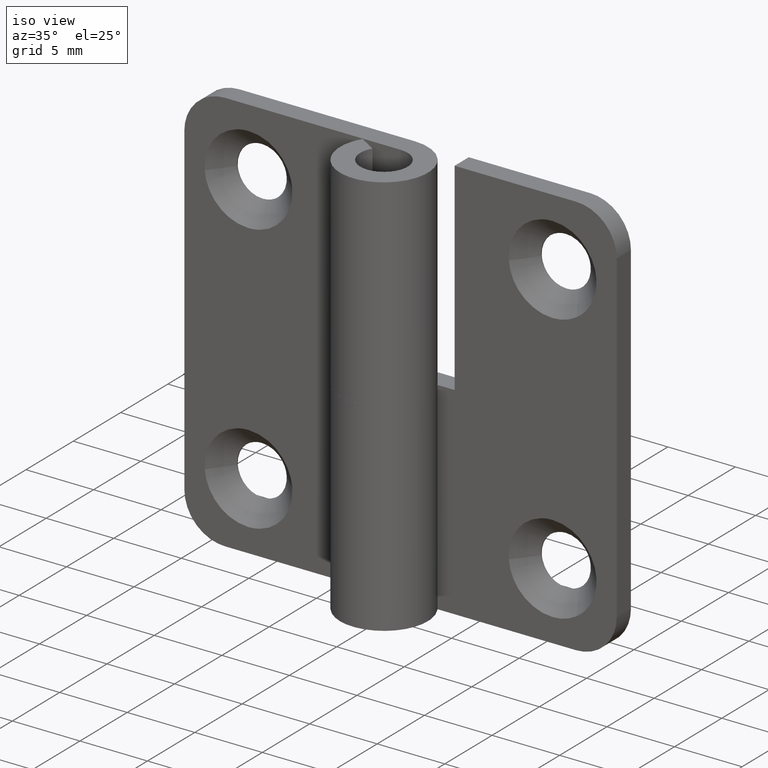
[diagram: clean part render]
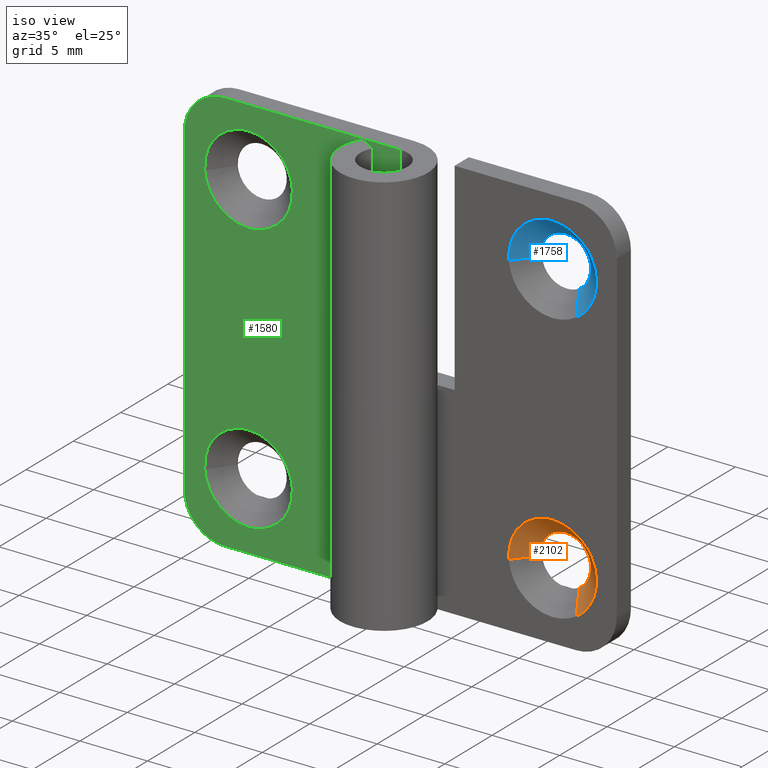
[diagram: same view with three faces highlighted in distinct colors, each labeled with its STEP entity id]
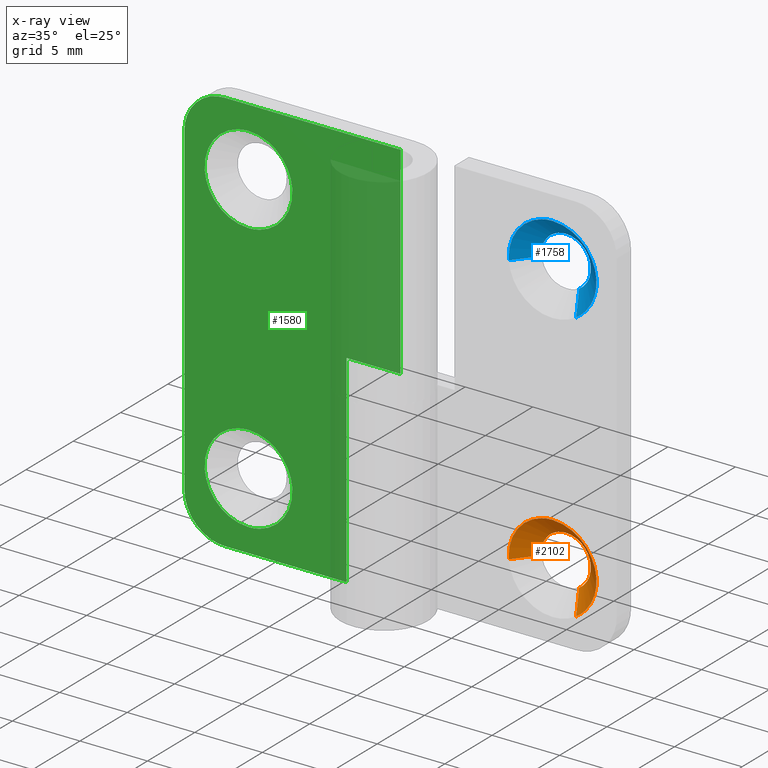
[diagram: x-ray of the same camera — body ghosted, the three highlighted faces saturated]
A machine part, iso view with three faces highlighted in distinct colors.
The next image is the same camera in x-ray (body ghosted, the three faces saturated) — at least one of them is partly hidden behind the body in this view.
Their STEP definitions:

[orange] entity #2102 — the highlighted face is a freeform B-spline surface patch.
#1966=CARTESIAN_POINT('',(12.226199204050261,3.184999914467338,3.469882289452754));
#1967=CARTESIAN_POINT('',(13.144906164681577,3.184999914467338,4.056007786557792));
#1968=CARTESIAN_POINT('',(13.059404986573719,3.184999914467338,5.142403260780329));
#1969=CARTESIAN_POINT('',(12.917001725793392,3.184999914467337,6.951808247354050));
#1970=CARTESIAN_POINT('',(11.107596739219670,3.184999914467338,6.809404986573721));
#1971=CARTESIAN_POINT('',(9.298191752645950,3.184999914467337,6.667001725793393));
#1972=CARTESIAN_POINT('',(9.440595013426279,3.184999914467338,4.857596739219671));
#1973=CARTESIAN_POINT('',(13.017310442706544,1.714125002138317,2.229875831489477));
#1974=CARTESIAN_POINT('',(14.680536963046244,1.714125002138317,3.290997073416813));
#1975=CARTESIAN_POINT('',(14.525745682427720,1.714125002138316,5.257806776330438));
#1976=CARTESIAN_POINT('',(14.267938906097283,1.714125002138317,8.533552458758155));
#1977=CARTESIAN_POINT('',(10.992193223669560,1.714125002138316,8.275745682427717));
#1978=CARTESIAN_POINT('',(7.716447541241846,1.714125002138317,8.017938906097280));
#1979=CARTESIAN_POINT('',(7.974254317572283,1.714125002138316,4.742193223669562));
#1987=(BOUNDED_SURFACE()B_SPLINE_SURFACE(2,1,((#1966,#1973),(#1967,#1974),(#1968,#1975),(#1969,#1976),(#1970,#1977),(#1971,#1978),(#1972,#1979)),.UNSPECIFIED.,.F.,.F.,.U.)B_SPLINE_SURFACE_WITH_KNOTS((3,2,2,3),(2,2),(0.0,3.702066781231150,9.146282635982843,14.590498490734531),(0.0,2.080131249570040),.UNSPECIFIED.)GEOMETRIC_REPRESENTATION_ITEM()RATIONAL_B_SPLINE_SURFACE(((0.872532871172386,0.872532871172386),(0.800832611206852,0.800832611206852),(1.0,1.0),(0.707106781186548,0.707106781186548),(1.0,1.0),(0.707106781186548,0.707106781186548),(1.0,1.0)))REPRESENTATION_ITEM('')SURFACE());
#1988=CARTESIAN_POINT('',(13.087067641521941,3.149999916553500,5.218363336286531));
#1989=VERTEX_POINT('',#1988);
#1990=CARTESIAN_POINT('',(12.245023980748909,3.149999916550422,3.440375889529511));
#1991=VERTEX_POINT('',#1990);
#1992=CARTESIAN_POINT('',(13.087067641521941,3.149999916553500,5.218363336286531));
#1993=CARTESIAN_POINT('',(13.100000023841863,3.149999916553500,5.109564622829602));
#1994=CARTESIAN_POINT('',(13.100000023841860,3.149999916553500,5.0));
#1995=CARTESIAN_POINT('',(13.100000023841854,3.149999916553499,3.985841723377516));
#1996=CARTESIAN_POINT('',(12.245023980748913,3.149999916550421,3.440375889529511));
#2004=(BOUNDED_CURVE()B_SPLINE_CURVE(2,(#1992,#1993,#1994,#1995,#1996),.UNSPECIFIED.,.F.,.U.)B_SPLINE_CURVE_WITH_KNOTS((3,2,3),(0.229562473504437,0.250000000000000,0.407950112618090),.UNSPECIFIED.)CURVE()GEOMETRIC_REPRESENTATION_ITEM()RATIONAL_B_SPLINE_CURVE((0.956026754165919,0.976055948320517,1.0,0.814949932413361,0.863729296949081))REPRESENTATION_ITEM(''));
#2005=EDGE_CURVE('',#1989,#1991,#2004,.T.);
#2006=ORIENTED_EDGE('',*,*,#2005,.T.);
#2007=CARTESIAN_POINT('',(12.998015046664330,1.749999999998616,2.260119891452559));
#2008=VERTEX_POINT('',#2007);
#2009=CARTESIAN_POINT('',(12.245023980748909,3.149999916550422,3.440375889529511));
#2010=CARTESIAN_POINT('',(12.998015046664330,1.749999999998616,2.260119891452559));
#2011=QUASI_UNIFORM_CURVE('',1,(#2009,#2010),.UNSPECIFIED.,.F.,.U.);
#2012=EDGE_CURVE('',#1991,#2008,#2011,.T.);
#2013=ORIENTED_EDGE('',*,*,#2012,.T.);
#2014=CARTESIAN_POINT('',(11.250000000000000,1.750000000000000,8.249999940395357));
#2015=VERTEX_POINT('',#2014);
#2016=CARTESIAN_POINT('',(11.250000000000000,1.750000000000000,8.249999940395357));
#2017=CARTESIAN_POINT('',(14.499999940395357,1.750000000000000,8.249999940395355));
#2018=CARTESIAN_POINT('',(14.499999940395361,1.750000000000000,5.0));
#2019=CARTESIAN_POINT('',(14.499999940395357,1.750000000000000,3.218370650660745));
#2020=CARTESIAN_POINT('',(12.998015046664332,1.749999999998616,2.260119891452559));
#2028=(BOUNDED_CURVE()B_SPLINE_CURVE(2,(#2016,#2017,#2018,#2019,#2020),.UNSPECIFIED.,.F.,.U.)B_SPLINE_CURVE_WITH_KNOTS((3,2,3),(0.0,0.250000000000000,0.407950112625137),.UNSPECIFIED.)CURVE()GEOMETRIC_REPRESENTATION_ITEM()RATIONAL_B_SPLINE_CURVE((1.0,0.707106781186547,1.0,0.814949932405105,0.863729296953433))REPRESENTATION_ITEM(''));
#2029=EDGE_CURVE('',#2015,#2008,#2028,.T.);
#2030=ORIENTED_EDGE('',*,*,#2029,.F.);
#2031=CARTESIAN_POINT('',(8.010018724783620,1.749999999988451,4.745007943472487));
#2032=VERTEX_POINT('',#2031);
#2033=CARTESIAN_POINT('',(8.010018724783620,1.749999999988451,4.745007943472487));
#2034=CARTESIAN_POINT('',(8.000000059604647,1.750000000000000,4.872307154478904));
#2035=CARTESIAN_POINT('',(8.000000059604645,1.750000000000000,5.0));
#2036=CARTESIAN_POINT('',(8.000000059604645,1.750000000000000,8.249999940395355));
#2037=CARTESIAN_POINT('',(11.250000000000000,1.750000000000000,8.249999940395357));
#2045=(BOUNDED_CURVE()B_SPLINE_CURVE(2,(#2033,#2034,#2035,#2036,#2037),.UNSPECIFIED.,.F.,.U.)B_SPLINE_CURVE_WITH_KNOTS((3,2,3),(0.736331300623493,0.750000000000000,1.0),.UNSPECIFIED.)CURVE()GEOMETRIC_REPRESENTATION_ITEM()RATIONAL_B_SPLINE_CURVE((0.969723356152462,0.983986122570486,1.0,0.707106781186547,1.0))REPRESENTATION_ITEM(''));
#2046=EDGE_CURVE('',#2032,#2015,#2045,.T.);
#2047=ORIENTED_EDGE('',*,*,#2046,.F.);
#2048=CARTESIAN_POINT('',(9.405702908823280,3.149999916548235,4.854850670992100));
#2049=VERTEX_POINT('',#2048);
#2050=CARTESIAN_POINT('',(9.405702908823280,3.149999916548235,4.854850670992100));
#2051=CARTESIAN_POINT('',(8.010018724783620,1.749999999988451,4.745007943472487));
#2052=QUASI_UNIFORM_CURVE('',1,(#2050,#2051),.UNSPECIFIED.,.F.,.U.);
#2053=EDGE_CURVE('',#2049,#2032,#2052,.T.);
#2054=ORIENTED_EDGE('',*,*,#2053,.F.);
#2055=CARTESIAN_POINT('',(9.403450605072022,3.149999916553500,4.887060200760407));
#2056=VERTEX_POINT('',#2055);
#2057=CARTESIAN_POINT('',(9.405702908823280,3.149999916548235,4.854850670992101));
#2058=CARTESIAN_POINT('',(9.404436209824677,3.149999916553500,4.870945607865558));
#2059=CARTESIAN_POINT('',(9.403450605072022,3.149999916553500,4.887060200760407));
#2067=(BOUNDED_CURVE()B_SPLINE_CURVE(2,(#2057,#2058,#2059),.UNSPECIFIED.,.F.,.U.)B_SPLINE_CURVE_WITH_KNOTS((3,3),(0.736331300625264,0.739332962240384),.UNSPECIFIED.)CURVE()GEOMETRIC_REPRESENTATION_ITEM()RATIONAL_B_SPLINE_CURVE((0.969723356156156,0.972855475555657,0.976072041669807))REPRESENTATION_ITEM(''));
#2068=EDGE_CURVE('',#2049,#2056,#2067,.T.);
#2069=ORIENTED_EDGE('',*,*,#2068,.T.);
#2070=CARTESIAN_POINT('',(11.250000000000000,3.149999916553500,6.850000023841860));
#2071=VERTEX_POINT('',#2070);
#2072=CARTESIAN_POINT('',(9.403450605072022,3.149999916553500,4.887060200760407));
#2073=CARTESIAN_POINT('',(9.399999976158140,3.149999916553501,4.943477387160677));
#2074=CARTESIAN_POINT('',(9.399999976158140,3.149999916553500,5.0));
#2075=CARTESIAN_POINT('',(9.399999976158140,3.149999916553500,6.850000023841860));
#2076=CARTESIAN_POINT('',(11.250000000000000,3.149999916553500,6.850000023841860));
#2084=(BOUNDED_CURVE()B_SPLINE_CURVE(2,(#2072,#2073,#2074,#2075,#2076),.UNSPECIFIED.,.F.,.U.)B_SPLINE_CURVE_WITH_KNOTS((3,2,3),(0.739332962240384,0.750000000000000,1.0),.UNSPECIFIED.)CURVE()GEOMETRIC_REPRESENTATION_ITEM()RATIONAL_B_SPLINE_CURVE((0.976072041669807,0.987502787901526,1.0,0.707106781186548,1.0))REPRESENTATION_ITEM(''));
#2085=EDGE_CURVE('',#2056,#2071,#2084,.T.);
#2086=ORIENTED_EDGE('',*,*,#2085,.T.);
#2087=CARTESIAN_POINT('',(11.250000000000000,3.149999916553500,6.850000023841860));
#2088=CARTESIAN_POINT('',(12.893122894076031,3.149999916553500,6.850000023841860));
#2089=CARTESIAN_POINT('',(13.087067641521939,3.149999916553500,5.218363336286531));
#2097=(BOUNDED_CURVE()B_SPLINE_CURVE(2,(#2087,#2088,#2089),.UNSPECIFIED.,.F.,.U.)B_SPLINE_CURVE_WITH_KNOTS((3,3),(0.0,0.229562473504437),.UNSPECIFIED.)CURVE()GEOMETRIC_REPRESENTATION_ITEM()RATIONAL_B_SPLINE_CURVE((1.0,0.731050832866030,0.956026754165919))REPRESENTATION_ITEM(''));
#2098=EDGE_CURVE('',#2071,#1989,#2097,.T.);
#2099=ORIENTED_EDGE('',*,*,#2098,.T.);
#2100=EDGE_LOOP('',(#2006,#2013,#2030,#2047,#2054,#2069,#2086,#2099));
#2101=FACE_OUTER_BOUND('',#2100,.T.);
#2102=ADVANCED_FACE('',(#2101),#1987,.F.);

[blue] entity #1758 — the highlighted face is a freeform B-spline surface patch.
#1622=CARTESIAN_POINT('',(12.226199204050261,3.184999914467338,23.469890289452543));
#1623=CARTESIAN_POINT('',(13.144906164681577,3.184999914467338,24.056015786557591));
#1624=CARTESIAN_POINT('',(13.059404986573719,3.184999914467338,25.142411260780129));
#1625=CARTESIAN_POINT('',(12.917001725793392,3.184999914467337,26.951816247353857));
#1626=CARTESIAN_POINT('',(11.107596739219670,3.184999914467338,26.809412986573520));
#1627=CARTESIAN_POINT('',(9.298191752645950,3.184999914467337,26.667009725793189));
#1628=CARTESIAN_POINT('',(9.440595013426279,3.184999914467338,24.857604739219472));
#1629=CARTESIAN_POINT('',(13.017310442706544,1.714125002138317,22.229883831489275));
#1630=CARTESIAN_POINT('',(14.680536963046244,1.714125002138317,23.291005073416606));
#1631=CARTESIAN_POINT('',(14.525745682427720,1.714125002138316,25.257814776330239));
#1632=CARTESIAN_POINT('',(14.267938906097283,1.714125002138317,28.533560458757961));
#1633=CARTESIAN_POINT('',(10.992193223669560,1.714125002138316,28.275753682427521));
#1634=CARTESIAN_POINT('',(7.716447541241846,1.714125002138317,28.017946906097073));
#1635=CARTESIAN_POINT('',(7.974254317572283,1.714125002138316,24.742201223669358));
#1643=(BOUNDED_SURFACE()B_SPLINE_SURFACE(2,1,((#1622,#1629),(#1623,#1630),(#1624,#1631),(#1625,#1632),(#1626,#1633),(#1627,#1634),(#1628,#1635)),.UNSPECIFIED.,.F.,.F.,.U.)B_SPLINE_SURFACE_WITH_KNOTS((3,2,2,3),(2,2),(0.0,3.702066781231153,9.146282635982848,14.590498490734539),(0.0,2.080131249570040),.UNSPECIFIED.)GEOMETRIC_REPRESENTATION_ITEM()RATIONAL_B_SPLINE_SURFACE(((0.872532871172386,0.872532871172386),(0.800832611206852,0.800832611206852),(1.0,1.0),(0.707106781186548,0.707106781186548),(1.0,1.0),(0.707106781186548,0.707106781186548),(1.0,1.0)))REPRESENTATION_ITEM('')SURFACE());
#1644=CARTESIAN_POINT('',(13.087067641521941,3.149999916553500,25.218371336286332));
#1645=VERTEX_POINT('',#1644);
#1646=CARTESIAN_POINT('',(12.245023980748909,3.149999916550422,23.440383889529311));
#1647=VERTEX_POINT('',#1646);
#1648=CARTESIAN_POINT('',(13.087067641521944,3.149999916553500,25.218371336286335));
#1649=CARTESIAN_POINT('',(13.100000023841865,3.149999916553500,25.109572622829404));
#1650=CARTESIAN_POINT('',(13.100000023841860,3.149999916553500,25.000007999999799));
#1651=CARTESIAN_POINT('',(13.100000023841854,3.149999916553500,23.985849723377321));
#1652=CARTESIAN_POINT('',(12.245023980748915,3.149999916550421,23.440383889529308));
#1660=(BOUNDED_CURVE()B_SPLINE_CURVE(2,(#1648,#1649,#1650,#1651,#1652),.UNSPECIFIED.,.F.,.U.)B_SPLINE_CURVE_WITH_KNOTS((3,2,3),(0.229562473504437,0.250000000000000,0.407950112618090),.UNSPECIFIED.)CURVE()GEOMETRIC_REPRESENTATION_ITEM()RATIONAL_B_SPLINE_CURVE((0.956026754165919,0.976055948320517,1.0,0.814949932413361,0.863729296949080))REPRESENTATION_ITEM(''));
#1661=EDGE_CURVE('',#1645,#1647,#1660,.T.);
#1662=ORIENTED_EDGE('',*,*,#1661,.T.);
#1663=CARTESIAN_POINT('',(12.998015046664330,1.749999999998617,22.260127891452360));
#1664=VERTEX_POINT('',#1663);
#1665=CARTESIAN_POINT('',(12.245023980748909,3.149999916550422,23.440383889529311));
#1666=CARTESIAN_POINT('',(12.998015046664330,1.749999999998617,22.260127891452360));
#1667=QUASI_UNIFORM_CURVE('',1,(#1665,#1666),.UNSPECIFIED.,.F.,.U.);
#1668=EDGE_CURVE('',#1647,#1664,#1667,.T.);
#1669=ORIENTED_EDGE('',*,*,#1668,.T.);
#1670=CARTESIAN_POINT('',(11.250000000000000,1.750000000000000,28.250007940395150));
#1671=VERTEX_POINT('',#1670);
#1672=CARTESIAN_POINT('',(11.250000000000000,1.750000000000000,28.250007940395150));
#1673=CARTESIAN_POINT('',(14.499999940395357,1.750000000000000,28.250007940395164));
#1674=CARTESIAN_POINT('',(14.499999940395361,1.750000000000000,25.000007999999799));
#1675=CARTESIAN_POINT('',(14.499999940395361,1.750000000000000,23.218378650660540));
#1676=CARTESIAN_POINT('',(12.998015046664330,1.749999999998617,22.260127891452360));
#1684=(BOUNDED_CURVE()B_SPLINE_CURVE(2,(#1672,#1673,#1674,#1675,#1676),.UNSPECIFIED.,.F.,.U.)B_SPLINE_CURVE_WITH_KNOTS((3,2,3),(0.0,0.250000000000000,0.407950112625137),.UNSPECIFIED.)CURVE()GEOMETRIC_REPRESENTATION_ITEM()RATIONAL_B_SPLINE_CURVE((1.0,0.707106781186547,1.0,0.814949932405105,0.863729296953433))REPRESENTATION_ITEM(''));
#1685=EDGE_CURVE('',#1671,#1664,#1684,.T.);
#1686=ORIENTED_EDGE('',*,*,#1685,.F.);
#1687=CARTESIAN_POINT('',(8.010018724783620,1.749999999988451,24.745015943472289));
#1688=VERTEX_POINT('',#1687);
#1689=CARTESIAN_POINT('',(8.010018724783620,1.749999999988452,24.745015943472286));
#1690=CARTESIAN_POINT('',(8.000000059604647,1.750000000000000,24.872315154478702));
#1691=CARTESIAN_POINT('',(8.000000059604645,1.750000000000000,25.000007999999799));
#1692=CARTESIAN_POINT('',(8.000000059604645,1.750000000000000,28.250007940395164));
#1693=CARTESIAN_POINT('',(11.250000000000000,1.750000000000000,28.250007940395150));
#1701=(BOUNDED_CURVE()B_SPLINE_CURVE(2,(#1689,#1690,#1691,#1692,#1693),.UNSPECIFIED.,.F.,.U.)B_SPLINE_CURVE_WITH_KNOTS((3,2,3),(0.736331300623493,0.750000000000000,1.0),.UNSPECIFIED.)CURVE()GEOMETRIC_REPRESENTATION_ITEM()RATIONAL_B_SPLINE_CURVE((0.969723356152462,0.983986122570486,1.0,0.707106781186547,1.0))REPRESENTATION_ITEM(''));
#1702=EDGE_CURVE('',#1688,#1671,#1701,.T.);
#1703=ORIENTED_EDGE('',*,*,#1702,.F.);
#1704=CARTESIAN_POINT('',(9.405702908823280,3.149999916548236,24.854858670991899));
#1705=VERTEX_POINT('',#1704);
#1706=CARTESIAN_POINT('',(9.405702908823280,3.149999916548236,24.854858670991899));
#1707=CARTESIAN_POINT('',(8.010018724783620,1.749999999988451,24.745015943472289));
#1708=QUASI_UNIFORM_CURVE('',1,(#1706,#1707),.UNSPECIFIED.,.F.,.U.);
#1709=EDGE_CURVE('',#1705,#1688,#1708,.T.);
#1710=ORIENTED_EDGE('',*,*,#1709,.F.);
#1711=CARTESIAN_POINT('',(9.403450605072022,3.149999916553500,24.887068200760201));
#1712=VERTEX_POINT('',#1711);
#1713=CARTESIAN_POINT('',(9.405702908823280,3.149999916548236,24.854858670991892));
#1714=CARTESIAN_POINT('',(9.404436209824675,3.149999916553500,24.870953607865349));
#1715=CARTESIAN_POINT('',(9.403450605072022,3.149999916553500,24.887068200760201));
#1723=(BOUNDED_CURVE()B_SPLINE_CURVE(2,(#1713,#1714,#1715),.UNSPECIFIED.,.F.,.U.)B_SPLINE_CURVE_WITH_KNOTS((3,3),(0.736331300625263,0.739332962240384),.UNSPECIFIED.)CURVE()GEOMETRIC_REPRESENTATION_ITEM()RATIONAL_B_SPLINE_CURVE((0.969723356156155,0.972855475555656,0.976072041669805))REPRESENTATION_ITEM(''));
#1724=EDGE_CURVE('',#1705,#1712,#1723,.T.);
#1725=ORIENTED_EDGE('',*,*,#1724,.T.);
#1726=CARTESIAN_POINT('',(11.250000000000000,3.149999916553500,26.850008023841660));
#1727=VERTEX_POINT('',#1726);
#1728=CARTESIAN_POINT('',(9.403450605072022,3.149999916553500,24.887068200760208));
#1729=CARTESIAN_POINT('',(9.399999976158140,3.149999916553500,24.943485387160479));
#1730=CARTESIAN_POINT('',(9.399999976158140,3.149999916553500,25.000007999999799));
#1731=CARTESIAN_POINT('',(9.399999976158140,3.149999916553500,26.850008023841657));
#1732=CARTESIAN_POINT('',(11.250000000000000,3.149999916553500,26.850008023841660));
#1740=(BOUNDED_CURVE()B_SPLINE_CURVE(2,(#1728,#1729,#1730,#1731,#1732),.UNSPECIFIED.,.F.,.U.)B_SPLINE_CURVE_WITH_KNOTS((3,2,3),(0.739332962240385,0.750000000000000,1.0),.UNSPECIFIED.)CURVE()GEOMETRIC_REPRESENTATION_ITEM()RATIONAL_B_SPLINE_CURVE((0.976072041669808,0.987502787901526,1.0,0.707106781186548,1.0))REPRESENTATION_ITEM(''));
#1741=EDGE_CURVE('',#1712,#1727,#1740,.T.);
#1742=ORIENTED_EDGE('',*,*,#1741,.T.);
#1743=CARTESIAN_POINT('',(11.250000000000000,3.149999916553500,26.850008023841660));
#1744=CARTESIAN_POINT('',(12.893122894076031,3.149999916553500,26.850008023841660));
#1745=CARTESIAN_POINT('',(13.087067641521941,3.149999916553500,25.218371336286328));
#1753=(BOUNDED_CURVE()B_SPLINE_CURVE(2,(#1743,#1744,#1745),.UNSPECIFIED.,.F.,.U.)B_SPLINE_CURVE_WITH_KNOTS((3,3),(0.0,0.229562473504437),.UNSPECIFIED.)CURVE()GEOMETRIC_REPRESENTATION_ITEM()RATIONAL_B_SPLINE_CURVE((1.0,0.731050832866030,0.956026754165919))REPRESENTATION_ITEM(''));
#1754=EDGE_CURVE('',#1727,#1645,#1753,.T.);
#1755=ORIENTED_EDGE('',*,*,#1754,.T.);
#1756=EDGE_LOOP('',(#1662,#1669,#1686,#1703,#1710,#1725,#1742,#1755));
#1757=FACE_OUTER_BOUND('',#1756,.T.);
#1758=ADVANCED_FACE('',(#1757),#1643,.F.);

[green] entity #1580 — the highlighted face is a freeform B-spline surface patch.
#661=CARTESIAN_POINT('',(-8.010018665362717,1.749999999988450,25.255000061203841));
#662=VERTEX_POINT('',#661);
#668=CARTESIAN_POINT('',(-11.250000000000000,1.750000000000000,28.250007999999799));
#669=VERTEX_POINT('',#668);
#670=CARTESIAN_POINT('',(-11.250000000000000,1.750000000000000,28.250007999999799));
#671=CARTESIAN_POINT('',(-8.245730902273859,1.750000000000000,28.250007999999802));
#672=CARTESIAN_POINT('',(-8.010018665362717,1.749999999988450,25.255000061203837));
#680=(BOUNDED_CURVE()B_SPLINE_CURVE(2,(#670,#671,#672),.UNSPECIFIED.,.F.,.U.)B_SPLINE_CURVE_WITH_KNOTS((3,3),(0.0,0.236331300623493),.UNSPECIFIED.)CURVE()GEOMETRIC_REPRESENTATION_ITEM()RATIONAL_B_SPLINE_CURVE((1.0,0.723120658616062,0.969723356152462))REPRESENTATION_ITEM(''));
#681=EDGE_CURVE('',#669,#662,#680,.T.);
#683=CARTESIAN_POINT('',(-14.489981334637280,1.749999999988450,24.745015938795749));
#684=VERTEX_POINT('',#683);
#685=CARTESIAN_POINT('',(-14.489981334637278,1.749999999988450,24.745015938795749));
#686=CARTESIAN_POINT('',(-14.499999999999998,1.750000000000000,24.872315152136824));
#687=CARTESIAN_POINT('',(-14.500000000000000,1.750000000000000,25.000007999999799));
#688=CARTESIAN_POINT('',(-14.500000000000004,1.750000000000000,28.250007999999792));
#689=CARTESIAN_POINT('',(-11.250000000000000,1.750000000000000,28.250007999999799));
#697=(BOUNDED_CURVE()B_SPLINE_CURVE(2,(#685,#686,#687,#688,#689),.UNSPECIFIED.,.F.,.U.)B_SPLINE_CURVE_WITH_KNOTS((3,2,3),(0.736331300623493,0.750000000000000,1.0),.UNSPECIFIED.)CURVE()GEOMETRIC_REPRESENTATION_ITEM()RATIONAL_B_SPLINE_CURVE((0.969723356152461,0.983986122570486,1.0,0.707106781186547,1.0))REPRESENTATION_ITEM(''));
#698=EDGE_CURVE('',#684,#669,#697,.T.);
#735=CARTESIAN_POINT('',(-11.250000000000000,1.750000000000000,21.750007999999799));
#736=VERTEX_POINT('',#735);
#737=CARTESIAN_POINT('',(-11.250000000000000,1.750000000000000,21.750007999999799));
#738=CARTESIAN_POINT('',(-14.254269097726150,1.750000000000000,21.750007999999795));
#739=CARTESIAN_POINT('',(-14.489981334637289,1.749999999988450,24.745015938795753));
#747=(BOUNDED_CURVE()B_SPLINE_CURVE(2,(#737,#738,#739),.UNSPECIFIED.,.F.,.U.)B_SPLINE_CURVE_WITH_KNOTS((3,3),(0.500000000000000,0.736331300623494),.UNSPECIFIED.)CURVE()GEOMETRIC_REPRESENTATION_ITEM()RATIONAL_B_SPLINE_CURVE((1.0,0.723120658616061,0.969723356152463))REPRESENTATION_ITEM(''));
#748=EDGE_CURVE('',#736,#684,#747,.T.);
#750=CARTESIAN_POINT('',(-8.010018665362717,1.749999999988450,25.255000061203841));
#751=CARTESIAN_POINT('',(-8.0,1.750000000000000,25.127700847862769));
#752=CARTESIAN_POINT('',(-8.0,1.750000000000000,25.000007999999799));
#753=CARTESIAN_POINT('',(-8.0,1.750000000000000,21.750007999999792));
#754=CARTESIAN_POINT('',(-11.250000000000000,1.750000000000000,21.750007999999799));
#762=(BOUNDED_CURVE()B_SPLINE_CURVE(2,(#750,#751,#752,#753,#754),.UNSPECIFIED.,.F.,.U.)B_SPLINE_CURVE_WITH_KNOTS((3,2,3),(0.236331300623493,0.250000000000000,0.500000000000000),.UNSPECIFIED.)CURVE()GEOMETRIC_REPRESENTATION_ITEM()RATIONAL_B_SPLINE_CURVE((0.969723356152462,0.983986122570486,1.0,0.707106781186547,1.0))REPRESENTATION_ITEM(''));
#763=EDGE_CURVE('',#662,#736,#762,.T.);
#993=CARTESIAN_POINT('',(-8.010018665362717,1.749999999988450,5.254992061204042));
#994=VERTEX_POINT('',#993);
#1000=CARTESIAN_POINT('',(-11.250000000000000,1.750000000000000,8.250000000000000));
#1001=VERTEX_POINT('',#1000);
#1002=CARTESIAN_POINT('',(-11.250000000000000,1.750000000000000,8.250000000000000));
#1003=CARTESIAN_POINT('',(-8.245730902273859,1.750000000000000,8.249999999999998));
#1004=CARTESIAN_POINT('',(-8.010018665362717,1.749999999988450,5.254992061204042));
#1012=(BOUNDED_CURVE()B_SPLINE_CURVE(2,(#1002,#1003,#1004),.UNSPECIFIED.,.F.,.U.)B_SPLINE_CURVE_WITH_KNOTS((3,3),(0.0,0.236331300623493),.UNSPECIFIED.)CURVE()GEOMETRIC_REPRESENTATION_ITEM()RATIONAL_B_SPLINE_CURVE((1.0,0.723120658616062,0.969723356152462))REPRESENTATION_ITEM(''));
#1013=EDGE_CURVE('',#1001,#994,#1012,.T.);
#1015=CARTESIAN_POINT('',(-14.489981334637280,1.749999999988450,4.745007938795959));
#1016=VERTEX_POINT('',#1015);
#1017=CARTESIAN_POINT('',(-14.489981334637278,1.749999999988450,4.745007938795959));
#1018=CARTESIAN_POINT('',(-14.500000000000005,1.750000000000001,4.872307152137029));
#1019=CARTESIAN_POINT('',(-14.500000000000000,1.750000000000000,5.0));
#1020=CARTESIAN_POINT('',(-14.500000000000004,1.750000000000000,8.250000000000000));
#1021=CARTESIAN_POINT('',(-11.250000000000000,1.750000000000000,8.250000000000000));
#1029=(BOUNDED_CURVE()B_SPLINE_CURVE(2,(#1017,#1018,#1019,#1020,#1021),.UNSPECIFIED.,.F.,.U.)B_SPLINE_CURVE_WITH_KNOTS((3,2,3),(0.736331300623493,0.750000000000000,1.0),.UNSPECIFIED.)CURVE()GEOMETRIC_REPRESENTATION_ITEM()RATIONAL_B_SPLINE_CURVE((0.969723356152462,0.983986122570486,1.0,0.707106781186547,1.0))REPRESENTATION_ITEM(''));
#1030=EDGE_CURVE('',#1016,#1001,#1029,.T.);
#1067=CARTESIAN_POINT('',(-11.250000000000000,1.750000000000000,1.750000000000000));
#1068=VERTEX_POINT('',#1067);
#1069=CARTESIAN_POINT('',(-11.250000000000000,1.750000000000000,1.750000000000000));
#1070=CARTESIAN_POINT('',(-14.254269097726150,1.750000000000000,1.750000000000000));
#1071=CARTESIAN_POINT('',(-14.489981334637289,1.749999999988451,4.745007938795959));
#1079=(BOUNDED_CURVE()B_SPLINE_CURVE(2,(#1069,#1070,#1071),.UNSPECIFIED.,.F.,.U.)B_SPLINE_CURVE_WITH_KNOTS((3,3),(0.500000000000000,0.736331300623494),.UNSPECIFIED.)CURVE()GEOMETRIC_REPRESENTATION_ITEM()RATIONAL_B_SPLINE_CURVE((1.0,0.723120658616061,0.969723356152463))REPRESENTATION_ITEM(''));
#1080=EDGE_CURVE('',#1068,#1016,#1079,.T.);
#1082=CARTESIAN_POINT('',(-8.010018665362717,1.749999999988450,5.254992061204042));
#1083=CARTESIAN_POINT('',(-8.0,1.750000000000001,5.127692847862971));
#1084=CARTESIAN_POINT('',(-8.0,1.750000000000000,5.0));
#1085=CARTESIAN_POINT('',(-8.0,1.750000000000000,1.750000000000000));
#1086=CARTESIAN_POINT('',(-11.250000000000000,1.750000000000000,1.750000000000000));
#1094=(BOUNDED_CURVE()B_SPLINE_CURVE(2,(#1082,#1083,#1084,#1085,#1086),.UNSPECIFIED.,.F.,.U.)B_SPLINE_CURVE_WITH_KNOTS((3,2,3),(0.236331300623493,0.250000000000000,0.500000000000000),.UNSPECIFIED.)CURVE()GEOMETRIC_REPRESENTATION_ITEM()RATIONAL_B_SPLINE_CURVE((0.969723356152462,0.983986122570486,1.0,0.707106781186547,1.0))REPRESENTATION_ITEM(''));
#1095=EDGE_CURVE('',#994,#1068,#1094,.T.);
#1108=CARTESIAN_POINT('',(-4.0,1.750000000000030,0.0));
#1109=VERTEX_POINT('',#1108);
#1122=CARTESIAN_POINT('',(-4.0,1.750000000000030,15.0));
#1123=VERTEX_POINT('',#1122);
#1129=CARTESIAN_POINT('',(-4.0,1.750000000000030,0.0));
#1130=CARTESIAN_POINT('',(-4.0,1.750000000000030,15.0));
#1131=QUASI_UNIFORM_CURVE('',1,(#1129,#1130),.UNSPECIFIED.,.F.,.U.);
#1132=EDGE_CURVE('',#1109,#1123,#1131,.T.);
#1178=CARTESIAN_POINT('',(-3.214592E-016,1.750000000000000,15.0));
#1179=VERTEX_POINT('',#1178);
#1199=CARTESIAN_POINT('',(-4.0,1.750000000000030,15.0));
#1200=CARTESIAN_POINT('',(-3.214592E-016,1.750000000000000,15.0));
#1201=QUASI_UNIFORM_CURVE('',1,(#1199,#1200),.UNSPECIFIED.,.F.,.U.);
#1202=EDGE_CURVE('',#1123,#1179,#1201,.T.);
#1221=CARTESIAN_POINT('',(-13.0,1.750000000000000,30.000008000000001));
#1222=VERTEX_POINT('',#1221);
#1223=CARTESIAN_POINT('',(-16.0,1.750000000000030,27.000008000000001));
#1224=VERTEX_POINT('',#1223);
#1225=CARTESIAN_POINT('',(-13.0,1.750000000000030,30.000008000000001));
#1226=CARTESIAN_POINT('',(-15.999999999999998,1.750000000000031,30.000008000000005));
#1227=CARTESIAN_POINT('',(-16.0,1.750000000000030,27.000008000000001));
#1235=(BOUNDED_CURVE()B_SPLINE_CURVE(2,(#1225,#1226,#1227),.UNSPECIFIED.,.F.,.U.)CURVE()GEOMETRIC_REPRESENTATION_ITEM()QUASI_UNIFORM_CURVE()RATIONAL_B_SPLINE_CURVE((1.0,0.707106781186548,1.0))REPRESENTATION_ITEM(''));
#1236=EDGE_CURVE('',#1222,#1224,#1235,.T.);
#1282=CARTESIAN_POINT('',(-16.0,1.750000000000030,3.0));
#1283=VERTEX_POINT('',#1282);
#1284=CARTESIAN_POINT('',(-13.0,1.750000000000030,0.0));
#1285=VERTEX_POINT('',#1284);
#1286=CARTESIAN_POINT('',(-16.0,1.750000000000030,3.0));
#1287=CARTESIAN_POINT('',(-15.999999999999998,1.750000000000031,0.0));
#1288=CARTESIAN_POINT('',(-13.0,1.750000000000030,0.0));
#1296=(BOUNDED_CURVE()B_SPLINE_CURVE(2,(#1286,#1287,#1288),.UNSPECIFIED.,.F.,.U.)CURVE()GEOMETRIC_REPRESENTATION_ITEM()QUASI_UNIFORM_CURVE()RATIONAL_B_SPLINE_CURVE((1.0,0.707106781186548,1.0))REPRESENTATION_ITEM(''));
#1297=EDGE_CURVE('',#1283,#1285,#1296,.T.);
#1341=CARTESIAN_POINT('',(-16.0,1.750000000000030,3.0));
#1342=CARTESIAN_POINT('',(-16.0,1.750000000000030,27.000008000000001));
#1343=QUASI_UNIFORM_CURVE('',1,(#1341,#1342),.UNSPECIFIED.,.F.,.U.);
#1344=EDGE_CURVE('',#1283,#1224,#1343,.T.);
#1355=CARTESIAN_POINT('',(-3.214592E-016,1.750000000000000,30.000008000000001));
#1356=VERTEX_POINT('',#1355);
#1357=CARTESIAN_POINT('',(-13.0,1.750000000000000,30.000008000000001));
#1358=CARTESIAN_POINT('',(-3.214592E-016,1.750000000000000,30.000008000000001));
#1359=QUASI_UNIFORM_CURVE('',1,(#1357,#1358),.UNSPECIFIED.,.F.,.U.);
#1360=EDGE_CURVE('',#1222,#1356,#1359,.T.);
#1494=CARTESIAN_POINT('',(-3.214592E-016,1.750000000000000,15.0));
#1495=CARTESIAN_POINT('',(-3.214592E-016,1.750000000000000,30.000008000000001));
#1496=QUASI_UNIFORM_CURVE('',1,(#1494,#1495),.UNSPECIFIED.,.F.,.U.);
#1497=EDGE_CURVE('',#1179,#1356,#1496,.T.);
#1516=CARTESIAN_POINT('',(-13.0,1.750000000000030,0.0));
#1517=CARTESIAN_POINT('',(-4.0,1.750000000000030,0.0));
#1518=QUASI_UNIFORM_CURVE('',1,(#1516,#1517),.UNSPECIFIED.,.F.,.U.);
#1519=EDGE_CURVE('',#1285,#1109,#1518,.T.);
#1553=CARTESIAN_POINT('',(-16.799199968988891,1.750000000000000,31.498508059835551));
#1554=CARTESIAN_POINT('',(-16.799199968988891,1.750000000000000,-1.498501132719441));
#1555=CARTESIAN_POINT('',(0.799200398142338,1.750000000000000,31.498508059835551));
#1556=CARTESIAN_POINT('',(0.799200398142338,1.750000000000000,-1.498501132719441));
#1557=B_SPLINE_SURFACE_WITH_KNOTS('',1,1,((#1553,#1555),(#1554,#1556)),.UNSPECIFIED.,.F.,.F.,.U.,(2,2),(2,2),(0.0,32.997009192554998),(0.0,17.598400367131230),.UNSPECIFIED.);
#1558=ORIENTED_EDGE('',*,*,#1132,.T.);
#1559=ORIENTED_EDGE('',*,*,#1202,.T.);
#1560=ORIENTED_EDGE('',*,*,#1497,.T.);
#1561=ORIENTED_EDGE('',*,*,#1360,.F.);
#1562=ORIENTED_EDGE('',*,*,#1236,.T.);
#1563=ORIENTED_EDGE('',*,*,#1344,.F.);
#1564=ORIENTED_EDGE('',*,*,#1297,.T.);
#1565=ORIENTED_EDGE('',*,*,#1519,.T.);
#1566=EDGE_LOOP('',(#1558,#1559,#1560,#1561,#1562,#1563,#1564,#1565));
#1567=FACE_OUTER_BOUND('',#1566,.T.);
#1568=ORIENTED_EDGE('',*,*,#1080,.T.);
#1569=ORIENTED_EDGE('',*,*,#1030,.T.);
#1570=ORIENTED_EDGE('',*,*,#1013,.T.);
#1571=ORIENTED_EDGE('',*,*,#1095,.T.);
#1572=EDGE_LOOP('',(#1568,#1569,#1570,#1571));
#1573=FACE_BOUND('',#1572,.T.);
#1574=ORIENTED_EDGE('',*,*,#748,.T.);
#1575=ORIENTED_EDGE('',*,*,#698,.T.);
#1576=ORIENTED_EDGE('',*,*,#681,.T.);
#1577=ORIENTED_EDGE('',*,*,#763,.T.);
#1578=EDGE_LOOP('',(#1574,#1575,#1576,#1577));
#1579=FACE_BOUND('',#1578,.T.);
#1580=ADVANCED_FACE('',(#1567,#1573,#1579),#1557,.T.);